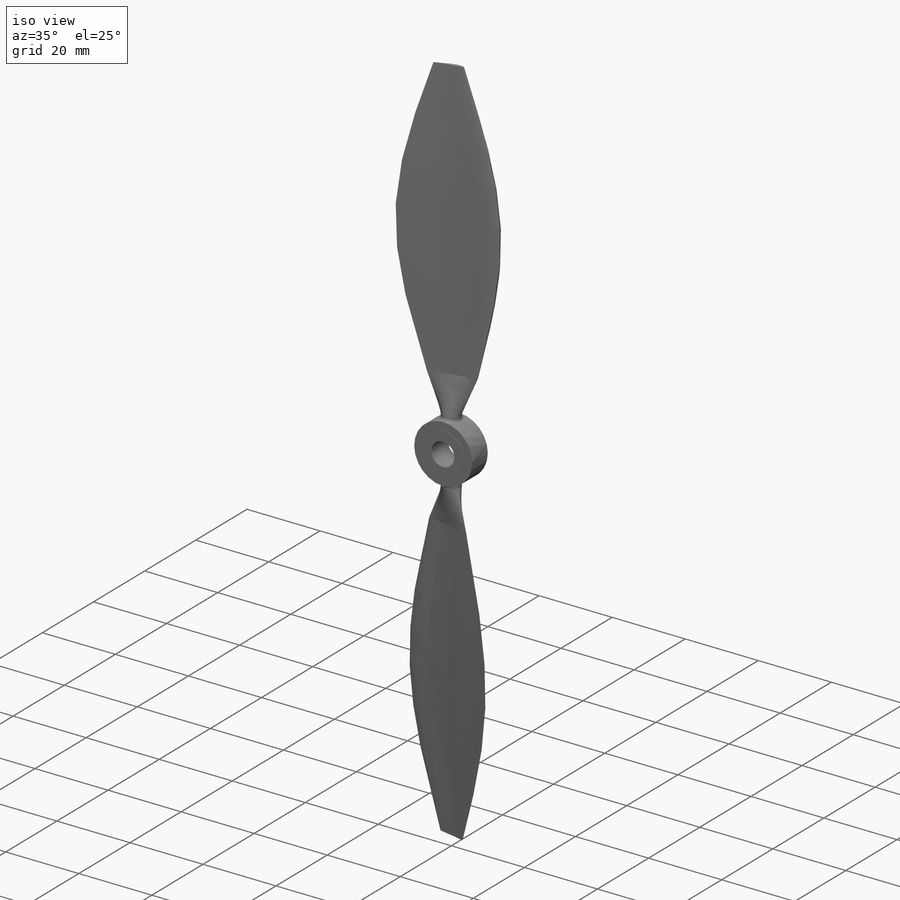
[diagram: iso view]
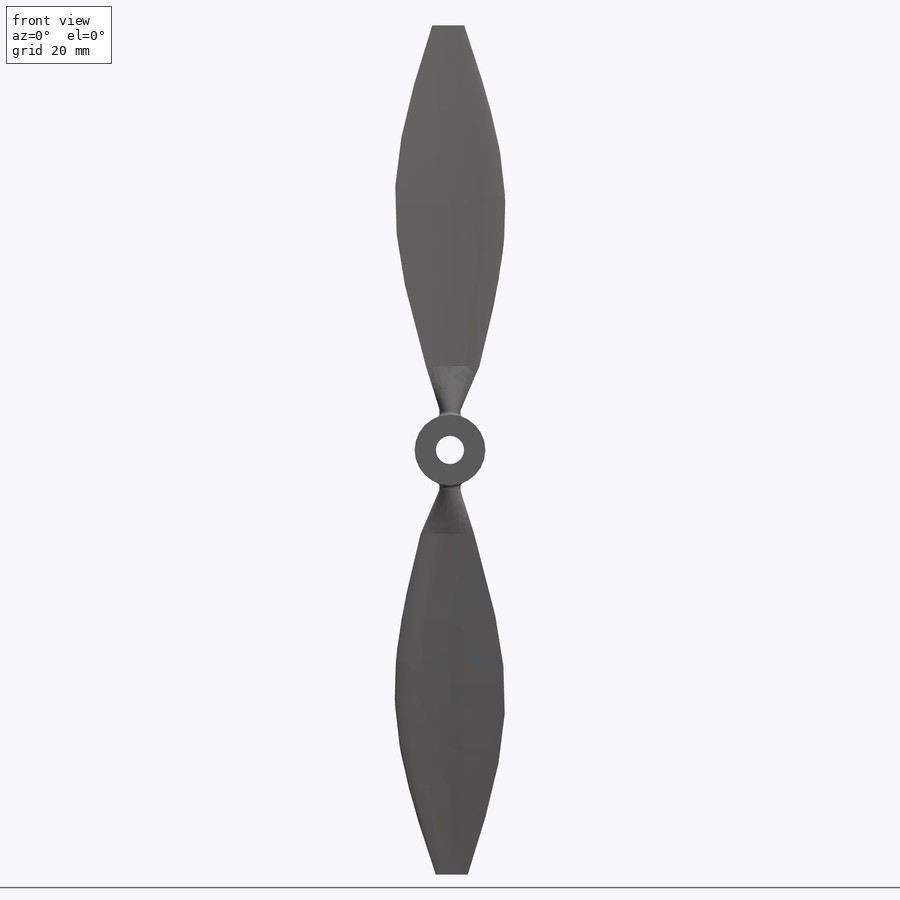
[diagram: front view]
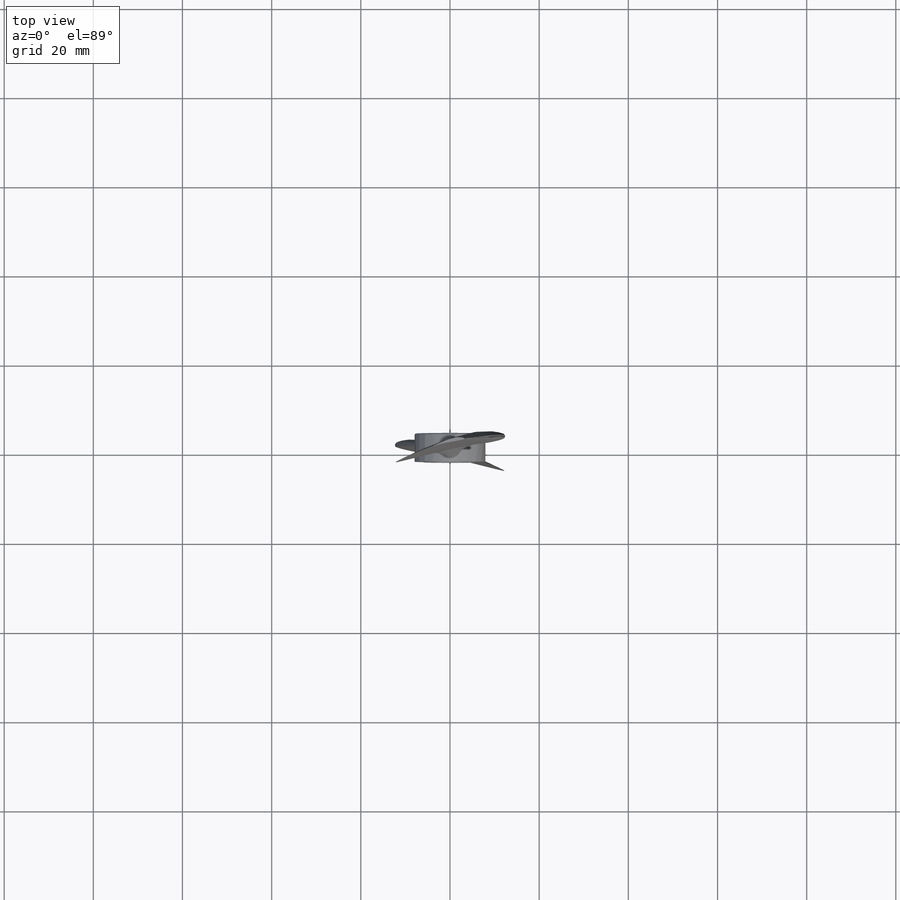
[diagram: top view]
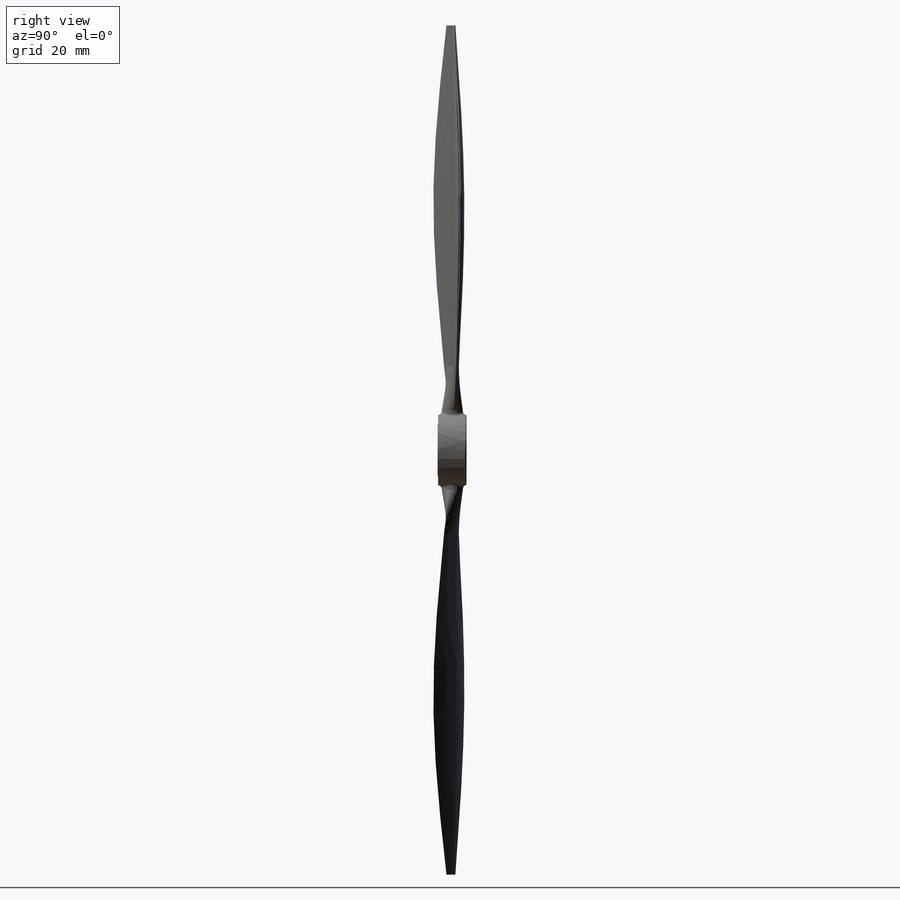
[diagram: right view]
SOLIDWORKS PART (.sldprt)
format: sldprt  version: not decoded by parser v0  size: 449,024 bytes
history: native  units: mm
features: sketch x11, plane x6, extrude x2, fillet x2, material x1, pattern_circular x1, cut_extrude x1 (+13 scaffold rows collapsed)
feature tree (37):
  scaffold x13  (default folders/planes/origin — collapsed)
  material  "Nylon 6/10"
  sketch  "Sketch1"
  plane  "Plane1"
  plane  "Plane2"
  plane  "Plane3"
  plane  "Plane4"  Offset=8.89mm
  sketch  "Sketch4"  dims[D1=0.0mm]
  sketch  "Sketch5"  dims[D1=0.0mm]
  sketch  "Sketch6"  dims[D1=0.0mm]
  plane  "Plane5"  Offset=6.35mm
  plane  "Plane6"  Offset=6.35mm
  sketch  "Sketch7"  dims[D1=4.7625mm]
  sketch  "Sketch4<2>"
  sketch  "Sketch8"  dims[D1=15.875mm]
  sketch  "Sketch9"
  sketch  "Sketch14"
  extrude  "Extrude2"  Depth=3.302mm
  sketch  "Sketch7<2>"
  pattern_circular  "CirPattern6"  Count=2 Angle=360deg
  extrude  "Extrude3"  Depth=3.175mm
  fillet  "Fillet1"  Radius=0.381mm
  fillet  "Fillet3"  Radius=0.8128mm
  sketch  "Sketch10"  dims[D1=6.3mm]
  cut_extrude  "Cut-Extrude1"  [1 undecoded]
decode coverage: 11 of 17 modeling features carry decoded parameters
note: 1 parameter value undecoded
note: suppression state not decoded; provenance and decode notes live in map.json
